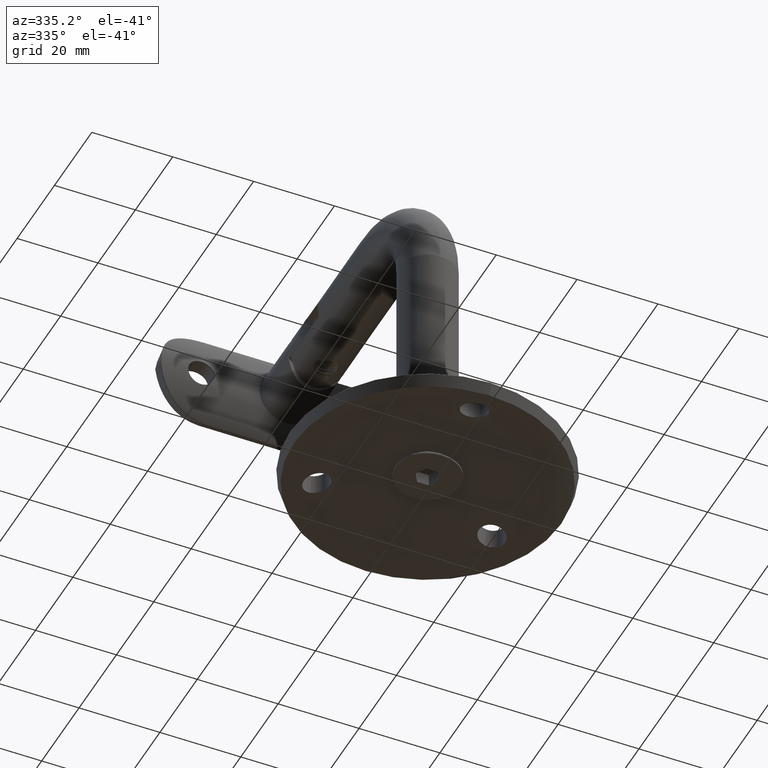
[diagram: clean part render]
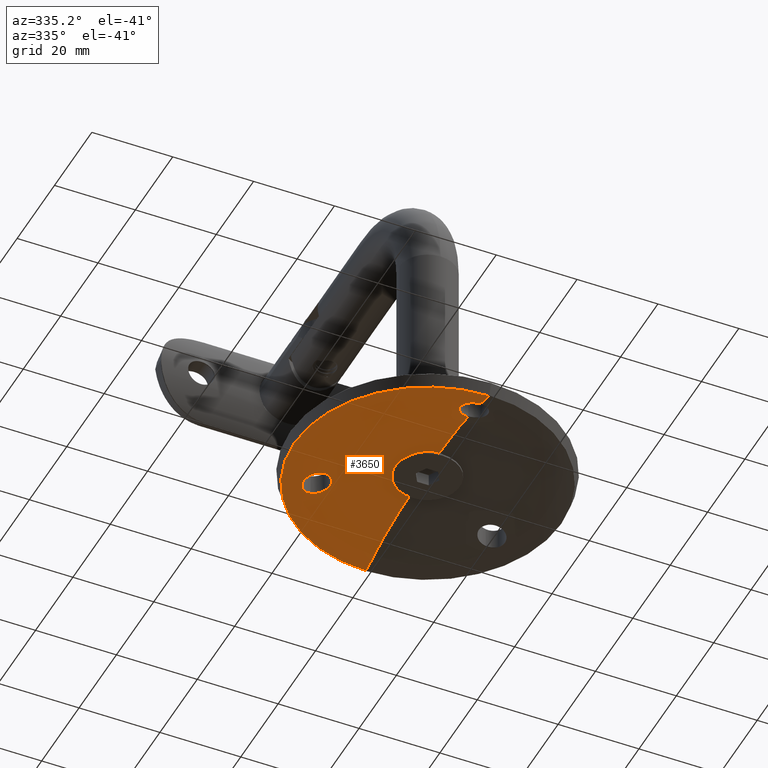
[diagram: same view with one face highlighted and labeled with its STEP entity id]
A machine part, auxiliary view. The second image highlights one B-rep face of the part: STEP entity #3650.
In plain terms, the highlighted toroidal blend (fillet) surface has major radius 6.25 mm and minor (blend) radius 91.8679 mm.
Its self-contained STEP definition (entity closure, byte-faithful):
#105 = CARTESIAN_POINT ( 'NONE',  ( -2.491413694040227611, 1.543693597252276728, 27.24049688663626156 ) ) ;
#384 = CARTESIAN_POINT ( 'NONE',  ( -24.31701816038460251, 1.745505182876714079, -10.47835376448824718 ) ) ;
#522 = DIRECTION ( 'NONE',  ( 0.000000000000000000, 0.000000000000000000, -1.000000000000000000 ) ) ;
#586 = CARTESIAN_POINT ( 'NONE',  ( -23.05403782127431356, 1.437979077147766960, -15.52757509886663456 ) ) ;
#719 = CARTESIAN_POINT ( 'NONE',  ( -19.46706630590298559, 2.665472506847252898, -9.929244330785463646 ) ) ;
#789 = CARTESIAN_POINT ( 'NONE',  ( -24.11759410862460129, 1.323025162538884247, -14.74246402294369851 ) ) ;
#864 = CARTESIAN_POINT ( 'NONE',  ( -19.00691986728243776, 2.697166751450866595, -10.40381609815095487 ) ) ;
#942 = CARTESIAN_POINT ( 'NONE',  ( -23.87712348483332292, 1.877332987316806090, -9.996979146835810681 ) ) ;
#1075 = B_SPLINE_CURVE_WITH_KNOTS ( 'NONE', 3,
 ( #1394, #14718, #4644, #7922, #24344, #1528, #24207, #11292, #19472, #5093, #18105, #34377, #25445, #13240, #38043, #28417, #39198, #105, #32975, #32422, #19536, #16279, #29430, #10289, #29292, #6911, #10010, #26320 ),
 .UNSPECIFIED., .F., .F.,
 ( 4, 2, 2, 2, 2, 2, 2, 2, 2, 2, 2, 2, 2, 4 ),
 ( 0.02073816853224310849, 0.02179558245608584355, 0.02285299637992857513, 0.02338170334184994786, 0.02391041030377132059, 0.02443911726569269333, 0.02496782422761406606, 0.02549653118953543532, 0.02602523815145680805, 0.02708265207529956045, 0.02761135903722093665, 0.02814006599914231285, 0.02866877296106368905, 0.02919747992298506525 ),
 .UNSPECIFIED. ) ;
#1394 = CARTESIAN_POINT ( 'NONE',  ( -2.056960089809127368, 2.563213540375364197, 22.33958642814448936 ) ) ;
#1435 = AXIS2_PLACEMENT_3D ( 'NONE', #8508, #37679, #31161 ) ;
#1485 = CARTESIAN_POINT ( 'NONE',  ( -0.7367922980088547069, 2.690971508762258768, 21.69410360167081109 ) ) ;
#1528 = CARTESIAN_POINT ( 'NONE',  ( -3.258387458783556401, 2.186837302569479391, 24.19433188642189236 ) ) ;
#1676 = EDGE_CURVE ( 'NONE', #19707, #7340, #41412, .T. ) ;
#1847 = ORIENTED_EDGE ( 'NONE', *, *, #1676, .T. ) ;
#1931 = DIRECTION ( 'NONE',  ( -0.000000000000000000, -1.000000000000000000, -0.000000000000000000 ) ) ;
#2191 = AXIS2_PLACEMENT_3D ( 'NONE', #23661, #4230, #26910 ) ;
#2436 = ORIENTED_EDGE ( 'NONE', *, *, #12298, .T. ) ;
#2543 = CIRCLE ( 'NONE', #8374, 32.96755217050610298 ) ;
#3108 = EDGE_CURVE ( 'NONE', #6221, #18073, #18573, .T. ) ;
#3182 = ORIENTED_EDGE ( 'NONE', *, *, #3108, .T. ) ;
#3615 = EDGE_CURVE ( 'NONE', #29322, #24396, #25451, .T. ) ;
#3650 = ADVANCED_FACE ( 'NONE', ( #6414, #39860 ), #31243, .F. ) ;
#3701 = CARTESIAN_POINT ( 'NONE',  ( -23.24956597151716409, 1.411984320597145848, -15.42844564293511489 ) ) ;
#3777 = CARTESIAN_POINT ( 'NONE',  ( -24.17896637757688438, 1.789235637101548093, -10.30627451673747785 ) ) ;
#3916 = CARTESIAN_POINT ( 'NONE',  ( -23.43688807159501408, 1.389756744292369728, -15.30851316263766648 ) ) ;
#4056 = CARTESIAN_POINT ( 'NONE',  ( -21.26443125186323613, 2.432067524882264742, -9.155938825818193294 ) ) ;
#4125 = CARTESIAN_POINT ( 'NONE',  ( -19.06929029081312166, 2.256466064915402026, -14.68516929218490752 ) ) ;
#4230 = DIRECTION ( 'NONE',  ( 1.000000000000000000, 0.000000000000000000, -1.224646799147353207E-16 ) ) ;
#4261 = CARTESIAN_POINT ( 'NONE',  ( -18.31258475944856912, 2.656788726133241685, -12.01699742534339066 ) ) ;
#4644 = CARTESIAN_POINT ( 'NONE',  ( -2.573806026536908931, 2.468780832552534221, 22.81192477773429417 ) ) ;
#4731 = CARTESIAN_POINT ( 'NONE',  ( -1.764369761465678588, 2.608617200492321597, 22.11175411491662501 ) ) ;
#4867 = CARTESIAN_POINT ( 'NONE',  ( -23.43688807159501408, 1.389756744292369728, -15.30851316263766648 ) ) ;
#5093 = CARTESIAN_POINT ( 'NONE',  ( -3.343307474728068218, 1.974360914084120067, 25.21550066586828009 ) ) ;
#6221 = VERTEX_POINT ( 'NONE', #34797 ) ;
#6414 = FACE_BOUND ( 'NONE', #22198, .T. ) ;
#6571 = AXIS2_PLACEMENT_3D ( 'NONE', #29571, #13409, #522 ) ;
#6911 = CARTESIAN_POINT ( 'NONE',  ( -0.3516362492691116337, 1.311156768473865419, 28.31205760158908191 ) ) ;
#7055 = CARTESIAN_POINT ( 'NONE',  ( -22.13368171930005701, 2.277224126552012784, -9.173045636635908551 ) ) ;
#7340 = VERTEX_POINT ( 'NONE', #24380 ) ;
#7394 = CARTESIAN_POINT ( 'NONE',  ( -20.50477512709059624, 1.897325749936804362, -15.64860658910664704 ) ) ;
#7541 = CARTESIAN_POINT ( 'NONE',  ( -18.71320422499625025, 2.374793595183656958, -14.14058670873038537 ) ) ;
#7922 = CARTESIAN_POINT ( 'NONE',  ( -2.964893976260233988, 2.352241018847003318, 23.38779481376743874 ) ) ;
#8159 = CARTESIAN_POINT ( 'NONE',  ( -2.056960089809127368, 2.563213540375364197, 22.33958642814448936 ) ) ;
#8374 = AXIS2_PLACEMENT_3D ( 'NONE', #37781, #1931, #18672 ) ;
#8462 = EDGE_CURVE ( 'NONE', #9885, #19707, #1075, .T. ) ;
#8508 = CARTESIAN_POINT ( 'NONE',  ( 0.000000000000000000, -87.86785809411674109, -6.250000000000000000 ) ) ;
#9269 = CIRCLE ( 'NONE', #39201, 6.349891266359784403 ) ;
#9885 = VERTEX_POINT ( 'NONE', #8159 ) ;
#10010 = CARTESIAN_POINT ( 'NONE',  ( -0.1745578386344913413, 1.308119081905888104, 28.32596986549528495 ) ) ;
#10152 = CARTESIAN_POINT ( 'NONE',  ( -24.88051990958030046, 1.514993018773811428, -11.65207424336288433 ) ) ;
#10289 = CARTESIAN_POINT ( 'NONE',  ( -0.8668414324632612855, 1.332010959421294105, 28.21647162134278375 ) ) ;
#10432 = CARTESIAN_POINT ( 'NONE',  ( -24.55432343499959202, 1.662806538355107833, -10.84205567713045859 ) ) ;
#10575 = CARTESIAN_POINT ( 'NONE',  ( -24.51444622734658196, 1.306589070084750004, -14.20569402447799945 ) ) ;
#10639 = CARTESIAN_POINT ( 'NONE',  ( -22.43405013147240012, 1.530413942581549946, -15.74665682054735072 ) ) ;
#10712 = CARTESIAN_POINT ( 'NONE',  ( -24.98151631256073202, 1.425983613298149155, -12.29962559742314809 ) ) ;
#10781 = CARTESIAN_POINT ( 'NONE',  ( -18.61077557155515549, 2.412600973768845858, -13.94483253639437237 ) ) ;
#11125 = DIRECTION ( 'NONE',  ( 0.000000000000000000, 0.000000000000000000, -1.000000000000000000 ) ) ;
#11292 = CARTESIAN_POINT ( 'NONE',  ( -3.340196242321090025, 2.081428337933072026, 24.70298707788407100 ) ) ;
#12298 = EDGE_CURVE ( 'NONE', #41712, #6221, #9269, .T. ) ;
#12573 = CARTESIAN_POINT ( 'NONE',  ( -1.540782106416569970E-11, 2.702881197384042533, 21.63325501939575446 ) ) ;
#13240 = CARTESIAN_POINT ( 'NONE',  ( -3.115430641968718994, 1.763215492167314657, 26.21504684324850842 ) ) ;
#13409 = DIRECTION ( 'NONE',  ( -0.000000000000000000, -1.000000000000000000, -0.000000000000000000 ) ) ;
#13482 = CARTESIAN_POINT ( 'NONE',  ( -19.82955211442798671, 2.629007397153975578, -9.670707361145217007 ) ) ;
#13704 = CARTESIAN_POINT ( 'NONE',  ( -24.96169894114126819, 1.453426329026081376, -12.08086877590416819 ) ) ;
#13911 = CARTESIAN_POINT ( 'NONE',  ( -23.43688807159501408, 1.389756744292369728, -15.30851316263766648 ) ) ;
#13981 = CARTESIAN_POINT ( 'NONE',  ( -20.83333277729820665, 2.499516297578384005, -9.232465840220136499 ) ) ;
#14052 = CARTESIAN_POINT ( 'NONE',  ( -18.44693849922236950, 2.482210472128510315, -13.53822746435380076 ) ) ;
#14718 = CARTESIAN_POINT ( 'NONE',  ( -2.333733204023866747, 2.520264368136946764, 22.55510229706551328 ) ) ;
#14951 = B_SPLINE_CURVE_WITH_KNOTS ( 'NONE', 3,
 ( #13482, #36709, #719, #32906, #864, #39682, #23693, #20303, #33452, #4261, #20580, #23408, #16898, #23554, #14052, #10781, #7541, #4125, #36145, #29780, #17322, #7394, #20014, #39405, #23139, #23280, #26666, #10639, #20162, #586, #3701, #13911 ),
 .UNSPECIFIED., .F., .F.,
 ( 4, 2, 2, 2, 2, 2, 2, 2, 2, 2, 2, 2, 2, 2, 2, 4 ),
 ( 0.009952617902102781772, 0.01062215262652615663, 0.01129168735094953323, 0.01196122207537290809, 0.01263075679979628468, 0.01330029152421965954, 0.01396982624864303441, 0.01463936097306641100, 0.01530889569748978760, 0.01664796514633652691, 0.01731749987075989830, 0.01798703459518326969, 0.01865656931960663761, 0.01932610404403001247, 0.01999563876845338040, 0.02066517349287675526 ),
 .UNSPECIFIED. ) ;
#16279 = CARTESIAN_POINT ( 'NONE',  ( -1.360509176583543978, 1.370004179526562726, 28.04205861480009787 ) ) ;
#16704 = CARTESIAN_POINT ( 'NONE',  ( -24.62081310495439368, 1.307523584811942419, -14.01290392343060276 ) ) ;
#16898 = CARTESIAN_POINT ( 'NONE',  ( -18.30398399172212720, 2.571004147989061295, -12.89795839135471489 ) ) ;
#16975 = CARTESIAN_POINT ( 'NONE',  ( -24.95328148196117724, 1.359334539010500720, -12.96178925256768899 ) ) ;
#17116 = CARTESIAN_POINT ( 'NONE',  ( -24.26322554310249657, 1.314270201982809638, -14.57043920753218735 ) ) ;
#17251 = CARTESIAN_POINT ( 'NONE',  ( 0.000000000000000000, 3.999945692343423342, 0.000000000000000000 ) ) ;
#17322 = CARTESIAN_POINT ( 'NONE',  ( -20.10634456291881378, 1.987933388887370922, -15.47653886037634408 ) ) ;
#18073 = VERTEX_POINT ( 'NONE', #12573 ) ;
#18105 = CARTESIAN_POINT ( 'NONE',  ( -3.326552075504253470, 1.938000802880682549, 25.38864176582911725 ) ) ;
#18573 = CIRCLE ( 'NONE', #2191, 91.86785809411672687 ) ;
#18672 = DIRECTION ( 'NONE',  ( 0.000000000000000000, 0.000000000000000000, -1.000000000000000000 ) ) ;
#19472 = CARTESIAN_POINT ( 'NONE',  ( -3.349951989261278129, 2.045954460993279156, 24.87323989694508697 ) ) ;
#19536 = CARTESIAN_POINT ( 'NONE',  ( -1.672507028806538010, 1.404467758718259240, 27.88352789261596953 ) ) ;
#19707 = VERTEX_POINT ( 'NONE', #25444 ) ;
#19946 = CARTESIAN_POINT ( 'NONE',  ( -23.35423528760559364, 2.013078760059398675, -9.610790901250043206 ) ) ;
#20014 = CARTESIAN_POINT ( 'NONE',  ( -20.71019610731776694, 1.852790522903137171, -15.71453991925578642 ) ) ;
#20162 = CARTESIAN_POINT ( 'NONE',  ( -22.64745938897250710, 1.496991244693742340, -15.68651896398049317 ) ) ;
#20303 = CARTESIAN_POINT ( 'NONE',  ( -18.47184905350271222, 2.693305802914876868, -11.36992710961975384 ) ) ;
#20374 = CARTESIAN_POINT ( 'NONE',  ( -24.81816747220783981, 1.549587284954320632, -11.43938474619064749 ) ) ;
#20580 = CARTESIAN_POINT ( 'NONE',  ( -18.28885657307650447, 2.639277395078599930, -12.23565208528763470 ) ) ;
#21312 = EDGE_CURVE ( 'NONE', #7340, #21678, #2543, .T. ) ;
#21678 = VERTEX_POINT ( 'NONE', #40020 ) ;
#22198 = EDGE_LOOP ( 'NONE', ( #32092, #30221 ) ) ;
#23073 = CARTESIAN_POINT ( 'NONE',  ( -19.82955211442798671, 2.629007397153975578, -9.670707361145217007 ) ) ;
#23139 = CARTESIAN_POINT ( 'NONE',  ( -21.35291270478727910, 1.722080426666336317, -15.83215931987789027 ) ) ;
#23212 = CARTESIAN_POINT ( 'NONE',  ( -24.97723016227503834, 1.378603470962973310, -12.74329262716808131 ) ) ;
#23280 = CARTESIAN_POINT ( 'NONE',  ( -21.78680164053471557, 1.640884112638889114, -15.84024036211433994 ) ) ;
#23408 = CARTESIAN_POINT ( 'NONE',  ( -18.28421297576699800, 2.596554314896533100, -12.67503691483099537 ) ) ;
#23486 = CARTESIAN_POINT ( 'NONE',  ( -23.79766140327139468, 1.349738310977768529, -15.05150294868649041 ) ) ;
#23554 = CARTESIAN_POINT ( 'NONE',  ( -18.38557064411646635, 2.513862221593710533, -13.32885097202551705 ) ) ;
#23624 = CARTESIAN_POINT ( 'NONE',  ( -23.71228852896325279, 1.922108593293575751, -9.857762931354677960 ) ) ;
#23661 = CARTESIAN_POINT ( 'NONE',  ( 7.654042494670957606E-16, -87.86785809411674109, 6.250000000000000000 ) ) ;
#23693 = CARTESIAN_POINT ( 'NONE',  ( -18.64599882027484412, 2.703426726922113943, -10.96514565453147050 ) ) ;
#24021 = DIRECTION ( 'NONE',  ( 1.000000000000000000, 0.000000000000000000, -1.224646799147353207E-16 ) ) ;
#24085 = ORIENTED_EDGE ( 'NONE', *, *, #29250, .T. ) ;
#24156 = CARTESIAN_POINT ( 'NONE',  ( -1.441973348961795409, 2.643179884223703979, 21.93672656107631269 ) ) ;
#24207 = CARTESIAN_POINT ( 'NONE',  ( -3.294646091821701983, 2.151727201361558706, 24.36422744792018236 ) ) ;
#24273 = ORIENTED_EDGE ( 'NONE', *, *, #31590, .F. ) ;
#24344 = CARTESIAN_POINT ( 'NONE',  ( -3.111692583385487154, 2.288752481089793456, 23.69910739872326033 ) ) ;
#24380 = CARTESIAN_POINT ( 'NONE',  ( 4.037360724133361810E-15, 0.02910292739445596855, 32.96755217050606035 ) ) ;
#24396 = VERTEX_POINT ( 'NONE', #28202 ) ;
#25444 = CARTESIAN_POINT ( 'NONE',  ( -2.349160032432947315E-11, 1.308119081905614767, 28.32596986549650708 ) ) ;
#25445 = CARTESIAN_POINT ( 'NONE',  ( -3.225149380194922699, 1.831940341748146572, 25.89123809722097747 ) ) ;
#25451 = B_SPLINE_CURVE_WITH_KNOTS ( 'NONE', 3,
 ( #3916, #39756, #23486, #789, #17116, #10575, #16704, #33116, #39892, #16975, #23212, #10712, #13704, #10152, #20374, #29849, #10432, #384, #3777, #942, #23624, #19946, #29717, #26876, #32839, #7055, #36355, #33391, #4056, #13981, #39478, #26456, #26740, #23073 ),
 .UNSPECIFIED., .F., .F.,
 ( 4, 2, 2, 2, 2, 2, 2, 2, 2, 2, 2, 2, 2, 2, 2, 2, 4 ),
 ( 0.02066517349287675526, 0.02133422059776506063, 0.02200326770265336601, 0.02267231480754166792, 0.02334136191242997330, 0.02401040901731827867, 0.02467945612220658058, 0.02534850322709488596, 0.02601755033198319134, 0.02668659743687149671, 0.02735564454175980209, 0.02802469164664810400, 0.02869373875153640938, 0.02936278585642471475, 0.03003183296131301666, 0.03070088006620132204, 0.03136992717108962742 ),
 .UNSPECIFIED. ) ;
#26320 = CARTESIAN_POINT ( 'NONE',  ( -2.349160032432947315E-11, 1.308119081905614767, 28.32596986549650708 ) ) ;
#26456 = CARTESIAN_POINT ( 'NONE',  ( -20.21522054304207927, 2.584657727790106385, -9.450326662867160721 ) ) ;
#26666 = CARTESIAN_POINT ( 'NONE',  ( -22.00303263066306414, 1.602504508234091851, -15.82336237444444116 ) ) ;
#26740 = CARTESIAN_POINT ( 'NONE',  ( -20.01578678967640812, 2.608890217674465717, -9.551501396728996340 ) ) ;
#26876 = CARTESIAN_POINT ( 'NONE',  ( -22.76769044703463507, 2.147645911640901684, -9.333368525295355767 ) ) ;
#26910 = DIRECTION ( 'NONE',  ( -1.224646799147353207E-16, 0.000000000000000000, -1.000000000000000000 ) ) ;
#27358 = CIRCLE ( 'NONE', #1435, 91.86785809411672687 ) ;
#27553 = CARTESIAN_POINT ( 'NONE',  ( -1.540782106416569970E-11, 2.702881197384042533, 21.63325501939575446 ) ) ;
#28202 = CARTESIAN_POINT ( 'NONE',  ( -19.82955211442798671, 2.629007397153975578, -9.670707361145217007 ) ) ;
#28417 = CARTESIAN_POINT ( 'NONE',  ( -2.887582166078420887, 1.663847728156100825, 26.68073861026249105 ) ) ;
#28421 = CARTESIAN_POINT ( 'NONE',  ( 0.000000000000000000, 3.999945692343423342, -6.349891266359784403 ) ) ;
#29250 = EDGE_CURVE ( 'NONE', #18073, #9885, #41157, .T. ) ;
#29292 = CARTESIAN_POINT ( 'NONE',  ( -0.6976702437168814663, 1.323137076547539648, 28.25715109007585468 ) ) ;
#29322 = VERTEX_POINT ( 'NONE', #4867 ) ;
#29430 = CARTESIAN_POINT ( 'NONE',  ( -1.197663089909270839, 1.355375384912784975, 28.10924305791335698 ) ) ;
#29571 = CARTESIAN_POINT ( 'NONE',  ( 0.000000000000000000, -87.86785809411674109, 0.000000000000000000 ) ) ;
#29717 = CARTESIAN_POINT ( 'NONE',  ( -23.16319862837182697, 2.058667276264543489, -9.504991675836555132 ) ) ;
#29780 = CARTESIAN_POINT ( 'NONE',  ( -19.91415970726683327, 2.033875202536123972, -15.37016036522604878 ) ) ;
#29849 = CARTESIAN_POINT ( 'NONE',  ( -24.65468603123854763, 1.623584985211280252, -11.03418263994690207 ) ) ;
#30221 = ORIENTED_EDGE ( 'NONE', *, *, #41960, .T. ) ;
#30393 = DIRECTION ( 'NONE',  ( -1.224646799147353207E-16, 0.000000000000000000, -1.000000000000000000 ) ) ;
#31161 = DIRECTION ( 'NONE',  ( 0.000000000000000000, 0.000000000000000000, 1.000000000000000000 ) ) ;
#31243 = TOROIDAL_SURFACE ( 'NONE', #6571, 6.250000000000000000, 91.86785809411672687 ) ;
#31590 = EDGE_CURVE ( 'NONE', #41712, #21678, #27358, .T. ) ;
#32092 = ORIENTED_EDGE ( 'NONE', *, *, #3615, .T. ) ;
#32323 = AXIS2_PLACEMENT_3D ( 'NONE', #33779, #24021, #30393 ) ;
#32422 = CARTESIAN_POINT ( 'NONE',  ( -1.820339850105134660, 1.424098870810585282, 27.79311867344532416 ) ) ;
#32839 = CARTESIAN_POINT ( 'NONE',  ( -22.56098576056080063, 2.191565102626257922, -9.266339417844475790 ) ) ;
#32906 = CARTESIAN_POINT ( 'NONE',  ( -19.14957799675456585, 2.689395650358234580, -10.23595277372625922 ) ) ;
#32975 = CARTESIAN_POINT ( 'NONE',  ( -2.240296053238604035, 1.489840828198270462, 27.48974928846964971 ) ) ;
#33116 = CARTESIAN_POINT ( 'NONE',  ( -24.79524582614325467, 1.318892562103107347, -13.60658931059067100 ) ) ;
#33391 = CARTESIAN_POINT ( 'NONE',  ( -21.48506665184503106, 2.395138536614541902, -9.138978921191323934 ) ) ;
#33452 = CARTESIAN_POINT ( 'NONE',  ( -18.40441812796436594, 2.683969697733113779, -11.58185176307182118 ) ) ;
#33649 = CARTESIAN_POINT ( 'NONE',  ( -2.056960089809127368, 2.563213540375364197, 22.33958642814448936 ) ) ;
#33779 = CARTESIAN_POINT ( 'NONE',  ( 7.654042494670957606E-16, -87.86785809411674109, 6.250000000000000000 ) ) ;
#34377 = CARTESIAN_POINT ( 'NONE',  ( -3.267399368392654324, 1.866903631653980433, 25.72596552448246499 ) ) ;
#34797 = CARTESIAN_POINT ( 'NONE',  ( 2.407499062780754752E-15, 3.999945692343423342, 6.349891266359785291 ) ) ;
#36145 = CARTESIAN_POINT ( 'NONE',  ( -19.38060432913842845, 2.168222726296750391, -15.00325155071329775 ) ) ;
#36355 = CARTESIAN_POINT ( 'NONE',  ( -21.91847873970708704, 2.317900635819600375, -9.147798945474630017 ) ) ;
#36647 = EDGE_LOOP ( 'NONE', ( #2436, #3182, #24085, #38944, #1847, #41147, #24273 ) ) ;
#36709 = CARTESIAN_POINT ( 'NONE',  ( -19.64318170633639937, 2.649139238575369149, -9.790000206076292955 ) ) ;
#37047 = DIRECTION ( 'NONE',  ( 0.000000000000000000, 1.000000000000000000, 0.000000000000000000 ) ) ;
#37679 = DIRECTION ( 'NONE',  ( -1.000000000000000000, 0.000000000000000000, 0.000000000000000000 ) ) ;
#37781 = CARTESIAN_POINT ( 'NONE',  ( 0.000000000000000000, 0.02910292739445596855, 0.000000000000000000 ) ) ;
#38043 = CARTESIAN_POINT ( 'NONE',  ( -3.047271854560488880, 1.729186931028299679, 26.37483095973220060 ) ) ;
#38944 = ORIENTED_EDGE ( 'NONE', *, *, #8462, .T. ) ;
#39198 = CARTESIAN_POINT ( 'NONE',  ( -2.796686216919289869, 1.632681205458379470, 26.82619817494400394 ) ) ;
#39201 = AXIS2_PLACEMENT_3D ( 'NONE', #17251, #37047, #11125 ) ;
#39405 = CARTESIAN_POINT ( 'NONE',  ( -21.13338111147952958, 1.765316100850708558, -15.80647500566139207 ) ) ;
#39478 = CARTESIAN_POINT ( 'NONE',  ( -20.62348246113674222, 2.530005903329781258, -9.291329722728194795 ) ) ;
#39682 = CARTESIAN_POINT ( 'NONE',  ( -18.75435468391149030, 2.704248482694844302, -10.76907944109746218 ) ) ;
#39756 = CARTESIAN_POINT ( 'NONE',  ( -23.62407374571612095, 1.367545356244943111, -15.18866802869903943 ) ) ;
#39860 = FACE_OUTER_BOUND ( 'NONE', #36647, .T. ) ;
#39892 = CARTESIAN_POINT ( 'NONE',  ( -24.86288737903089796, 1.329491973135298322, -13.39228535523660568 ) ) ;
#40020 = CARTESIAN_POINT ( 'NONE',  ( 0.000000000000000000, 0.02910292739445596855, -32.96755217050606035 ) ) ;
#40298 = CARTESIAN_POINT ( 'NONE',  ( -0.3736622212007630894, 2.702881197383696144, 21.63325501939747042 ) ) ;
#41147 = ORIENTED_EDGE ( 'NONE', *, *, #21312, .T. ) ;
#41157 = B_SPLINE_CURVE_WITH_KNOTS ( 'NONE', 3,
 ( #27553, #40298, #1485, #24156, #4731, #33649 ),
 .UNSPECIFIED., .F., .F.,
 ( 4, 2, 4 ),
 ( 0.01850248109526150819, 0.01962032481375231008, 0.02073816853224310849 ),
 .UNSPECIFIED. ) ;
#41412 = CIRCLE ( 'NONE', #32323, 91.86785809411672687 ) ;
#41712 = VERTEX_POINT ( 'NONE', #28421 ) ;
#41960 = EDGE_CURVE ( 'NONE', #24396, #29322, #14951, .T. ) ;